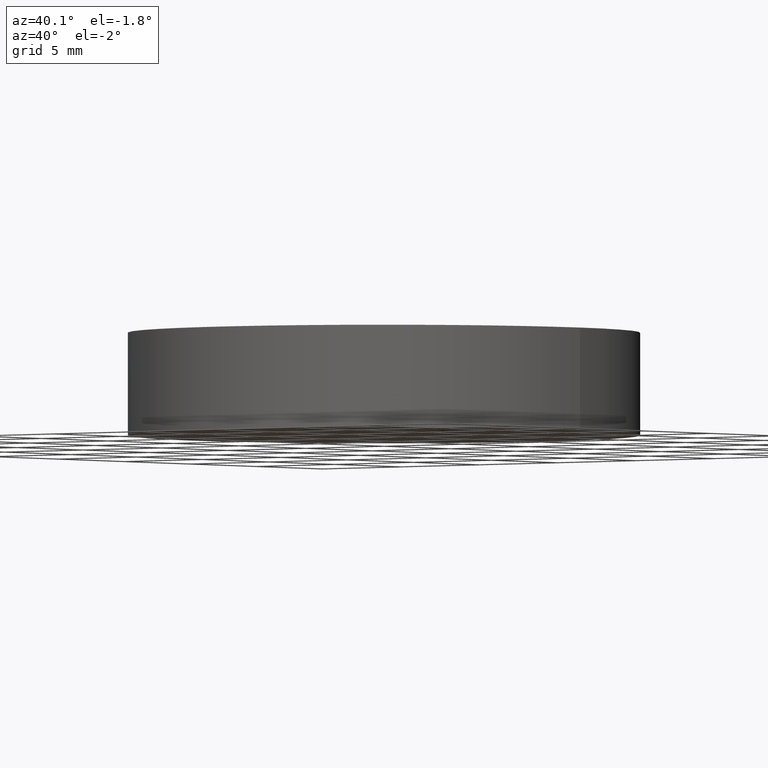
[diagram: clean part render]
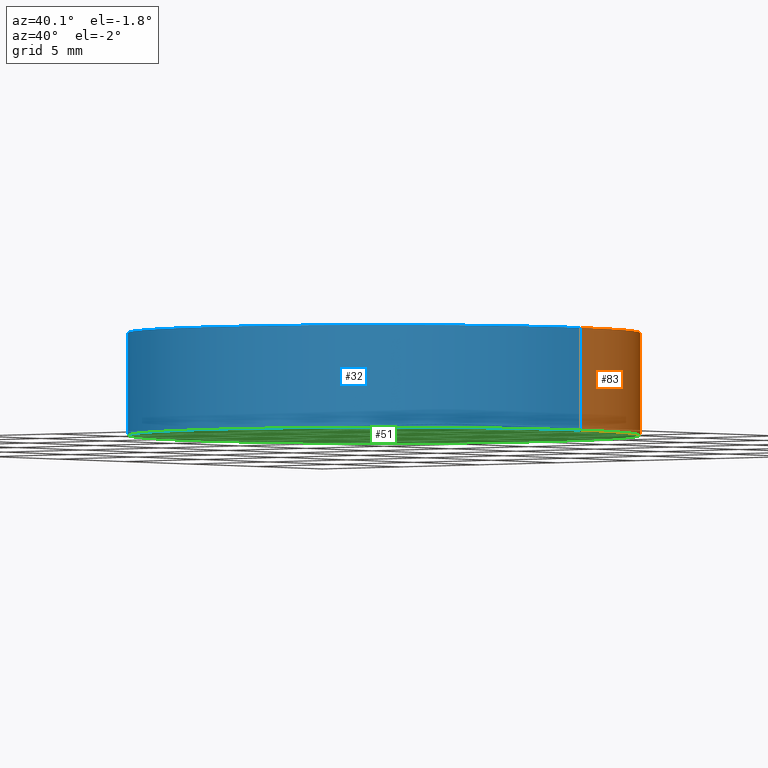
[diagram: same view with three faces highlighted in distinct colors, each labeled with its STEP entity id]
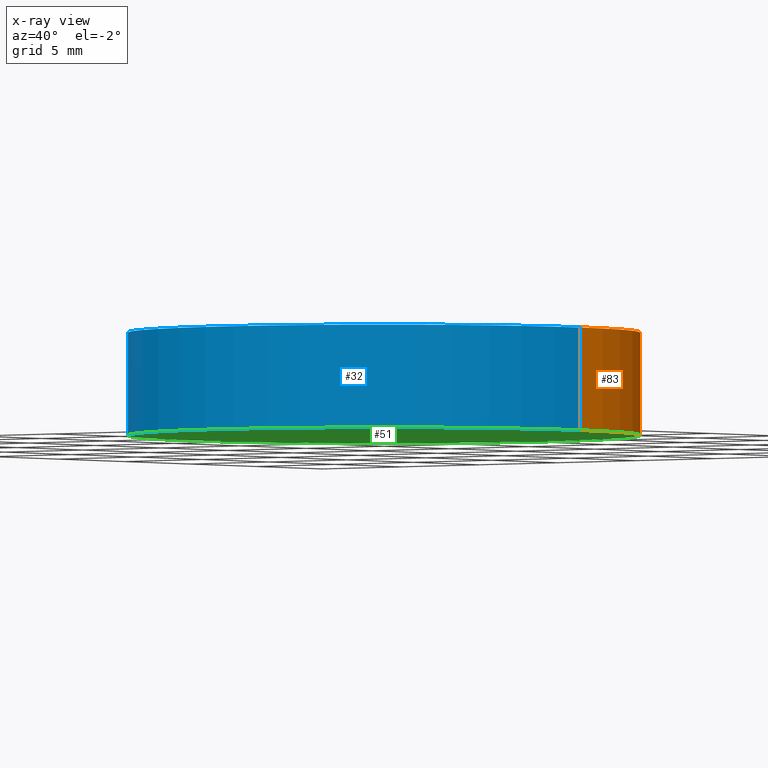
[diagram: x-ray of the same camera — body ghosted, the three highlighted faces saturated]
A machine part, auxiliary view with three faces highlighted in distinct colors.
The next image is the same camera in x-ray (body ghosted, the three faces saturated) — at least one of them is partly hidden behind the body in this view.
Their STEP definitions:

[orange] entity #83 — the highlighted cylindrical surface (partial cylindrical patch) has radius 12.5 mm, axis along (-0, -0, -1).
#8 = DIRECTION ( 'NONE',  ( 1.000000000000000000, 0.0000000000000000000, 0.0000000000000000000 ) ) ;
#10 = DIRECTION ( 'NONE',  ( -1.000000000000000000, 0.0000000000000000000, 0.0000000000000000000 ) ) ;
#14 = EDGE_LOOP ( 'NONE', ( #70, #18, #48, #113 ) ) ;
#18 = ORIENTED_EDGE ( 'NONE', *, *, #110, .T. ) ;
#22 = CARTESIAN_POINT ( 'NONE',  ( 0.0000000000000000000, 0.0000000000000000000, 0.0000000000000000000 ) ) ;
#24 = EDGE_CURVE ( 'NONE', #37, #60, #34, .T. ) ;
#25 = CARTESIAN_POINT ( 'NONE',  ( -12.50000000000000000, 0.0000000000000000000, 5.000000000000000000 ) ) ;
#30 = FACE_OUTER_BOUND ( 'NONE', #14, .T. ) ;
#31 = AXIS2_PLACEMENT_3D ( 'NONE', #136, #97, #10 ) ;
#34 = LINE ( 'NONE', #90, #65 ) ;
#37 = VERTEX_POINT ( 'NONE', #25 ) ;
#45 = DIRECTION ( 'NONE',  ( 0.0000000000000000000, 0.0000000000000000000, 1.000000000000000000 ) ) ;
#47 = LINE ( 'NONE', #118, #81 ) ;
#48 = ORIENTED_EDGE ( 'NONE', *, *, #78, .T. ) ;
#59 = DIRECTION ( 'NONE',  ( -0.0000000000000000000, -0.0000000000000000000, -1.000000000000000000 ) ) ;
#60 = VERTEX_POINT ( 'NONE', #98 ) ;
#65 = VECTOR ( 'NONE', #59, 1000.000000000000000 ) ;
#67 = CIRCLE ( 'NONE', #100, 12.50000000000000000 ) ;
#70 = ORIENTED_EDGE ( 'NONE', *, *, #74, .F. ) ;
#74 = EDGE_CURVE ( 'NONE', #108, #37, #130, .T. ) ;
#78 = EDGE_CURVE ( 'NONE', #123, #60, #67, .T. ) ;
#81 = VECTOR ( 'NONE', #125, 1000.000000000000000 ) ;
#83 = ADVANCED_FACE ( 'NONE', ( #30 ), #114, .T. ) ;
#87 = DIRECTION ( 'NONE',  ( 0.0000000000000000000, 0.0000000000000000000, 1.000000000000000000 ) ) ;
#90 = CARTESIAN_POINT ( 'NONE',  ( -12.50000000000000000, 0.0000000000000000000, 5.000000000000000000 ) ) ;
#97 = DIRECTION ( 'NONE',  ( -0.0000000000000000000, -0.0000000000000000000, -1.000000000000000000 ) ) ;
#98 = CARTESIAN_POINT ( 'NONE',  ( -12.50000000000000000, 0.0000000000000000000, 0.0000000000000000000 ) ) ;
#100 = AXIS2_PLACEMENT_3D ( 'NONE', #22, #87, #8 ) ;
#105 = CARTESIAN_POINT ( 'NONE',  ( 12.50000000000000000, 1.530808498934191500E-015, 5.000000000000000000 ) ) ;
#106 = DIRECTION ( 'NONE',  ( 1.000000000000000000, 0.0000000000000000000, 0.0000000000000000000 ) ) ;
#108 = VERTEX_POINT ( 'NONE', #105 ) ;
#110 = EDGE_CURVE ( 'NONE', #108, #123, #47, .T. ) ;
#113 = ORIENTED_EDGE ( 'NONE', *, *, #24, .F. ) ;
#114 = CYLINDRICAL_SURFACE ( 'NONE', #31, 12.50000000000000000 ) ;
#117 = CARTESIAN_POINT ( 'NONE',  ( 12.50000000000000000, 1.530808498934191500E-015, 0.0000000000000000000 ) ) ;
#118 = CARTESIAN_POINT ( 'NONE',  ( 12.50000000000000000, 1.530808498934191500E-015, 5.000000000000000000 ) ) ;
#119 = CARTESIAN_POINT ( 'NONE',  ( 0.0000000000000000000, 0.0000000000000000000, 5.000000000000000000 ) ) ;
#123 = VERTEX_POINT ( 'NONE', #117 ) ;
#125 = DIRECTION ( 'NONE',  ( -0.0000000000000000000, -0.0000000000000000000, -1.000000000000000000 ) ) ;
#127 = AXIS2_PLACEMENT_3D ( 'NONE', #119, #45, #106 ) ;
#130 = CIRCLE ( 'NONE', #127, 12.50000000000000000 ) ;
#136 = CARTESIAN_POINT ( 'NONE',  ( 0.0000000000000000000, 0.0000000000000000000, 5.000000000000000000 ) ) ;

[blue] entity #32 — the highlighted cylindrical surface (partial cylindrical patch) has radius 12.5 mm, axis along (-0, -0, -1).
#2 = EDGE_CURVE ( 'NONE', #60, #123, #27, .T. ) ;
#4 = AXIS2_PLACEMENT_3D ( 'NONE', #69, #126, #56 ) ;
#12 = CARTESIAN_POINT ( 'NONE',  ( 0.0000000000000000000, 0.0000000000000000000, 0.0000000000000000000 ) ) ;
#15 = AXIS2_PLACEMENT_3D ( 'NONE', #12, #139, #121 ) ;
#17 = CIRCLE ( 'NONE', #4, 12.50000000000000000 ) ;
#24 = EDGE_CURVE ( 'NONE', #37, #60, #34, .T. ) ;
#25 = CARTESIAN_POINT ( 'NONE',  ( -12.50000000000000000, 0.0000000000000000000, 5.000000000000000000 ) ) ;
#27 = CIRCLE ( 'NONE', #15, 12.50000000000000000 ) ;
#32 = ADVANCED_FACE ( 'NONE', ( #86 ), #115, .T. ) ;
#34 = LINE ( 'NONE', #90, #65 ) ;
#37 = VERTEX_POINT ( 'NONE', #25 ) ;
#40 = CARTESIAN_POINT ( 'NONE',  ( 0.0000000000000000000, 0.0000000000000000000, 5.000000000000000000 ) ) ;
#46 = DIRECTION ( 'NONE',  ( -0.0000000000000000000, -0.0000000000000000000, -1.000000000000000000 ) ) ;
#47 = LINE ( 'NONE', #118, #81 ) ;
#56 = DIRECTION ( 'NONE',  ( 1.000000000000000000, 0.0000000000000000000, 0.0000000000000000000 ) ) ;
#59 = DIRECTION ( 'NONE',  ( -0.0000000000000000000, -0.0000000000000000000, -1.000000000000000000 ) ) ;
#60 = VERTEX_POINT ( 'NONE', #98 ) ;
#64 = AXIS2_PLACEMENT_3D ( 'NONE', #40, #46, #107 ) ;
#65 = VECTOR ( 'NONE', #59, 1000.000000000000000 ) ;
#66 = EDGE_LOOP ( 'NONE', ( #84, #75, #92, #132 ) ) ;
#69 = CARTESIAN_POINT ( 'NONE',  ( 0.0000000000000000000, 0.0000000000000000000, 5.000000000000000000 ) ) ;
#75 = ORIENTED_EDGE ( 'NONE', *, *, #82, .F. ) ;
#81 = VECTOR ( 'NONE', #125, 1000.000000000000000 ) ;
#82 = EDGE_CURVE ( 'NONE', #37, #108, #17, .T. ) ;
#84 = ORIENTED_EDGE ( 'NONE', *, *, #110, .F. ) ;
#86 = FACE_OUTER_BOUND ( 'NONE', #66, .T. ) ;
#90 = CARTESIAN_POINT ( 'NONE',  ( -12.50000000000000000, 0.0000000000000000000, 5.000000000000000000 ) ) ;
#92 = ORIENTED_EDGE ( 'NONE', *, *, #24, .T. ) ;
#98 = CARTESIAN_POINT ( 'NONE',  ( -12.50000000000000000, 0.0000000000000000000, 0.0000000000000000000 ) ) ;
#105 = CARTESIAN_POINT ( 'NONE',  ( 12.50000000000000000, 1.530808498934191500E-015, 5.000000000000000000 ) ) ;
#107 = DIRECTION ( 'NONE',  ( -1.000000000000000000, 0.0000000000000000000, 0.0000000000000000000 ) ) ;
#108 = VERTEX_POINT ( 'NONE', #105 ) ;
#110 = EDGE_CURVE ( 'NONE', #108, #123, #47, .T. ) ;
#115 = CYLINDRICAL_SURFACE ( 'NONE', #64, 12.50000000000000000 ) ;
#117 = CARTESIAN_POINT ( 'NONE',  ( 12.50000000000000000, 1.530808498934191500E-015, 0.0000000000000000000 ) ) ;
#118 = CARTESIAN_POINT ( 'NONE',  ( 12.50000000000000000, 1.530808498934191500E-015, 5.000000000000000000 ) ) ;
#121 = DIRECTION ( 'NONE',  ( 1.000000000000000000, 0.0000000000000000000, 0.0000000000000000000 ) ) ;
#123 = VERTEX_POINT ( 'NONE', #117 ) ;
#125 = DIRECTION ( 'NONE',  ( -0.0000000000000000000, -0.0000000000000000000, -1.000000000000000000 ) ) ;
#126 = DIRECTION ( 'NONE',  ( 0.0000000000000000000, 0.0000000000000000000, 1.000000000000000000 ) ) ;
#132 = ORIENTED_EDGE ( 'NONE', *, *, #2, .T. ) ;
#139 = DIRECTION ( 'NONE',  ( 0.0000000000000000000, 0.0000000000000000000, 1.000000000000000000 ) ) ;

[green] entity #51 — the highlighted planar face has unit normal (0, 0, 1).
#2 = EDGE_CURVE ( 'NONE', #60, #123, #27, .T. ) ;
#8 = DIRECTION ( 'NONE',  ( 1.000000000000000000, 0.0000000000000000000, 0.0000000000000000000 ) ) ;
#9 = AXIS2_PLACEMENT_3D ( 'NONE', #36, #23, #88 ) ;
#12 = CARTESIAN_POINT ( 'NONE',  ( 0.0000000000000000000, 0.0000000000000000000, 0.0000000000000000000 ) ) ;
#15 = AXIS2_PLACEMENT_3D ( 'NONE', #12, #139, #121 ) ;
#22 = CARTESIAN_POINT ( 'NONE',  ( 0.0000000000000000000, 0.0000000000000000000, 0.0000000000000000000 ) ) ;
#23 = DIRECTION ( 'NONE',  ( 0.0000000000000000000, 0.0000000000000000000, 1.000000000000000000 ) ) ;
#27 = CIRCLE ( 'NONE', #15, 12.50000000000000000 ) ;
#36 = CARTESIAN_POINT ( 'NONE',  ( 0.0000000000000000000, 0.0000000000000000000, 0.0000000000000000000 ) ) ;
#38 = PLANE ( 'NONE',  #9 ) ;
#41 = EDGE_LOOP ( 'NONE', ( #80, #50 ) ) ;
#50 = ORIENTED_EDGE ( 'NONE', *, *, #78, .F. ) ;
#51 = ADVANCED_FACE ( 'NONE', ( #140 ), #38, .F. ) ;
#60 = VERTEX_POINT ( 'NONE', #98 ) ;
#67 = CIRCLE ( 'NONE', #100, 12.50000000000000000 ) ;
#78 = EDGE_CURVE ( 'NONE', #123, #60, #67, .T. ) ;
#80 = ORIENTED_EDGE ( 'NONE', *, *, #2, .F. ) ;
#87 = DIRECTION ( 'NONE',  ( 0.0000000000000000000, 0.0000000000000000000, 1.000000000000000000 ) ) ;
#88 = DIRECTION ( 'NONE',  ( 1.000000000000000000, 0.0000000000000000000, -0.0000000000000000000 ) ) ;
#98 = CARTESIAN_POINT ( 'NONE',  ( -12.50000000000000000, 0.0000000000000000000, 0.0000000000000000000 ) ) ;
#100 = AXIS2_PLACEMENT_3D ( 'NONE', #22, #87, #8 ) ;
#117 = CARTESIAN_POINT ( 'NONE',  ( 12.50000000000000000, 1.530808498934191500E-015, 0.0000000000000000000 ) ) ;
#121 = DIRECTION ( 'NONE',  ( 1.000000000000000000, 0.0000000000000000000, 0.0000000000000000000 ) ) ;
#123 = VERTEX_POINT ( 'NONE', #117 ) ;
#139 = DIRECTION ( 'NONE',  ( 0.0000000000000000000, 0.0000000000000000000, 1.000000000000000000 ) ) ;
#140 = FACE_OUTER_BOUND ( 'NONE', #41, .T. ) ;